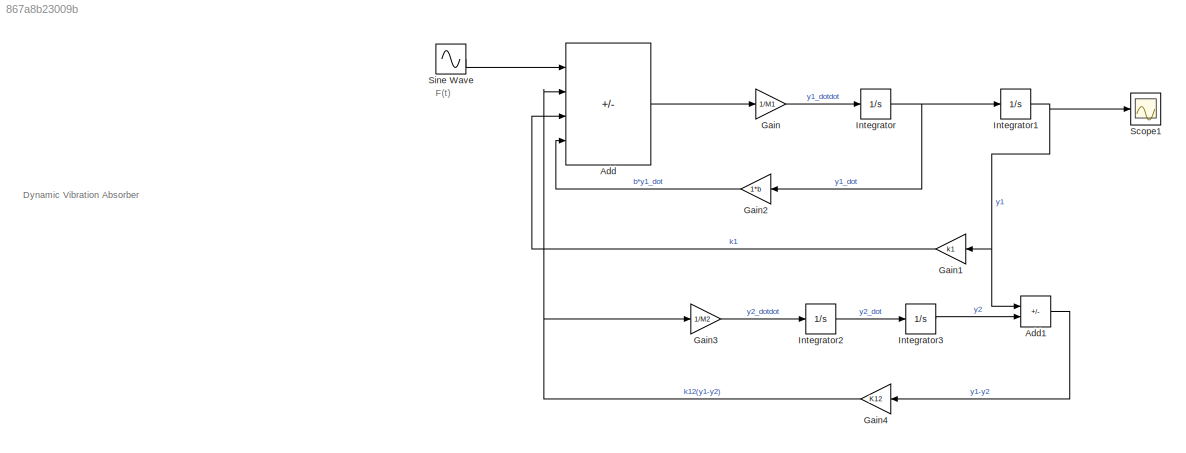
MODEL slx_867a8b23009b
KIND model
CONFIG AbsTol = auto
CONFIG EnableMultiTasking = off
CONFIG FixedStep = auto
CONFIG MaxStep = auto
CONFIG MinStep = auto
CONFIG RelTol = 1e-3
CONFIG SampleTimeConstraint = Unconstrained
CONFIG SolverName = VariableStepAuto
CONFIG StartTime = 0.0
CONFIG StopTime = 10.0
WORKSPACE source: mxarray member
WORKSPACE K12: Simulink.Parameter (value not decoded)
WORKSPACE M1: Simulink.Parameter (value not decoded)
WORKSPACE M2: Simulink.Parameter (value not decoded)
WORKSPACE b: Simulink.Parameter (value not decoded)
WORKSPACE k1: Simulink.Parameter (value not decoded)
BLOCK [Sum] Add
  IconShape = rectangular
  Inputs = +---
  Ports = [4, 1]
BLOCK [Sum] Add1
  IconShape = rectangular
  Inputs = +-
  Ports = [2, 1]
BLOCK [Gain] Gain
  Gain = 1/M1
BLOCK [Gain] Gain1
  Gain = k1
BLOCK [Gain] Gain2
  Gain = 1*b
BLOCK [Gain] Gain3
  Gain = 1/M2
BLOCK [Gain] Gain4
  Gain = K12
BLOCK [Integrator] Integrator
  Ports = [1, 1]
BLOCK [Integrator] Integrator1
  Ports = [1, 1]
BLOCK [Integrator] Integrator2
  Ports = [1, 1]
BLOCK [Integrator] Integrator3
  Ports = [1, 1]
BLOCK [Scope] Scope1
  Floating = off
  NumInputPorts = 1
  Ports = [1]
  ScopeSpecificationString = Simulink.scopes.TimeScopeBlockCfg('CurrentConfiguration', extmgr.ConfigurationSet(extmgr.Configuration('Core','General UI',true),extmgr.Configuration('Core','Source UI',true),extmgr.Configuration('Sources','WiredSimulink',true,'DataLoggingVariableName','ScopeData1'),extmgr.Configuration('Visuals','Time Domain',true,'SerializedDisplays',{struct('MinYLimReal','-0.01671','MaxYLimReal','0.01758','YLab...<+1386ch>
BLOCK [Sin] Sine Wave
  Ports = [0, 1]
  SampleTime = 0
ANNOTATION (root): Dynamic Vibration Absorber
ANNOTATION (root): F(t)
LINE Add1:1 -> Gain4:1
LINE Add:1 -> Gain:1
LINE Gain1:1 -> Add:3
LINE Gain2:1 -> Add:4
LINE Gain3:1 -> Integrator2:1
NET Gain4:1 -> Add:2, Gain3:1
LINE Gain:1 -> Integrator:1
NET Integrator1:1 -> Add1:1, Gain1:1, Scope1:1
LINE Integrator2:1 -> Integrator3:1
LINE Integrator3:1 -> Add1:2
NET Integrator:1 -> Gain2:1, Integrator1:1
LINE Sine Wave:1 -> Add:1
note: NET lines group one-source signal fan-out (src -> all destinations, sorted); 1:1 wires keep LINE
